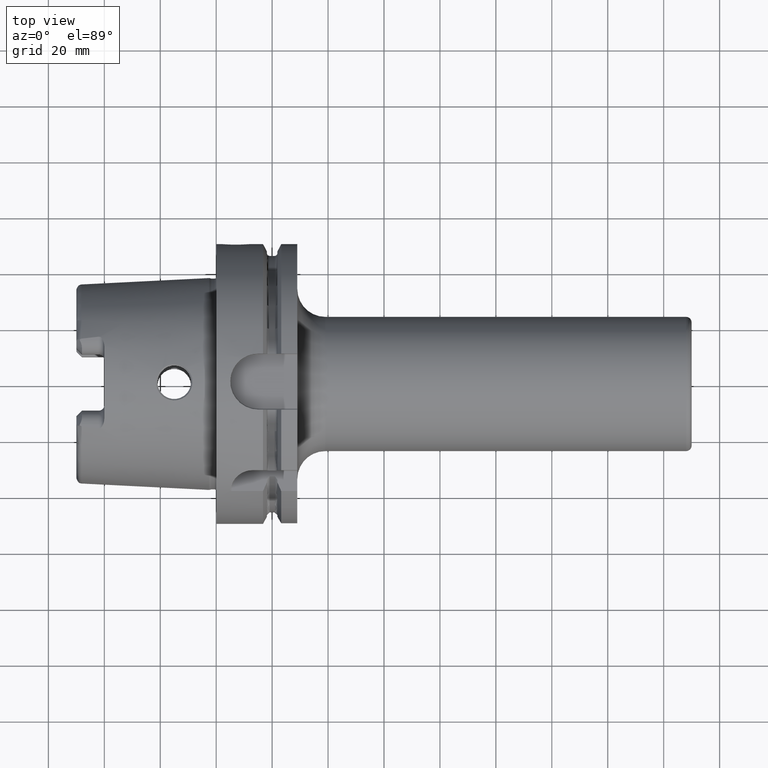
[diagram: clean part render]
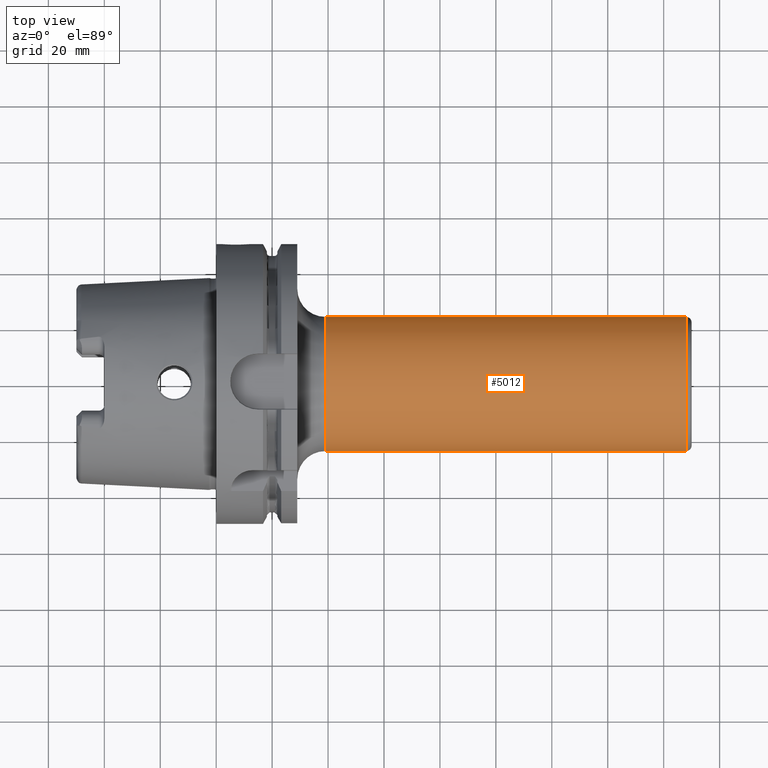
[diagram: same view with one face highlighted and labeled with its STEP entity id]
A machine part, top view. The second image highlights one B-rep face of the part: STEP entity #5012.
In plain terms, the highlighted cylindrical surface (partial cylindrical patch) has radius 24 mm, axis along (1, 0, 0).
Its self-contained STEP definition (entity closure, byte-faithful):
#1820=CARTESIAN_POINT('',(1.68E2,0.E0,0.E0));
#1821=DIRECTION('',(-1.E0,0.E0,0.E0));
#1822=DIRECTION('',(0.E0,-1.E0,0.E0));
#1823=AXIS2_PLACEMENT_3D('',#1820,#1821,#1822);
#1825=CARTESIAN_POINT('',(3.9E1,0.E0,0.E0));
#1826=DIRECTION('',(1.E0,0.E0,0.E0));
#1827=DIRECTION('',(0.E0,1.E0,0.E0));
#1828=AXIS2_PLACEMENT_3D('',#1825,#1826,#1827);
#1845=DIRECTION('',(-1.E0,0.E0,0.E0));
#1846=VECTOR('',#1845,1.29E2);
#1847=CARTESIAN_POINT('',(1.68E2,2.4E1,-7.171146839858E-14));
#1848=LINE('',#1847,#1846);
#1854=DIRECTION('',(-1.E0,0.E0,0.E0));
#1855=VECTOR('',#1854,1.29E2);
#1856=CARTESIAN_POINT('',(1.68E2,-2.4E1,6.564200073158E-14));
#1857=LINE('',#1856,#1855);
#3129=CARTESIAN_POINT('',(3.9E1,-2.4E1,0.E0));
#3130=CARTESIAN_POINT('',(3.9E1,2.4E1,0.E0));
#3131=VERTEX_POINT('',#3129);
#3132=VERTEX_POINT('',#3130);
#3133=CARTESIAN_POINT('',(1.68E2,2.4E1,0.E0));
#3134=CARTESIAN_POINT('',(1.68E2,-2.4E1,0.E0));
#3135=VERTEX_POINT('',#3133);
#3136=VERTEX_POINT('',#3134);
#4998=CARTESIAN_POINT('',(2.195E1,0.E0,0.E0));
#4999=DIRECTION('',(1.E0,0.E0,0.E0));
#5000=DIRECTION('',(0.E0,-1.E0,0.E0));
#5001=AXIS2_PLACEMENT_3D('',#4998,#4999,#5000);
#5002=CYLINDRICAL_SURFACE('',#5001,2.4E1);
#5004=ORIENTED_EDGE('',*,*,#5003,.F.);
#5006=ORIENTED_EDGE('',*,*,#5005,.T.);
#5007=ORIENTED_EDGE('',*,*,#4992,.F.);
#5009=ORIENTED_EDGE('',*,*,#5008,.F.);
#5010=EDGE_LOOP('',(#5004,#5006,#5007,#5009));
#5011=FACE_OUTER_BOUND('',#5010,.F.);
#5012=ADVANCED_FACE('',(#5011),#5002,.T.);
#1824=CIRCLE('',#1823,2.4E1);
#1829=CIRCLE('',#1828,2.4E1);
#4992=EDGE_CURVE('',#3132,#3131,#1829,.T.);
#5003=EDGE_CURVE('',#3136,#3135,#1824,.T.);
#5005=EDGE_CURVE('',#3136,#3131,#1857,.T.);
#5008=EDGE_CURVE('',#3135,#3132,#1848,.T.);